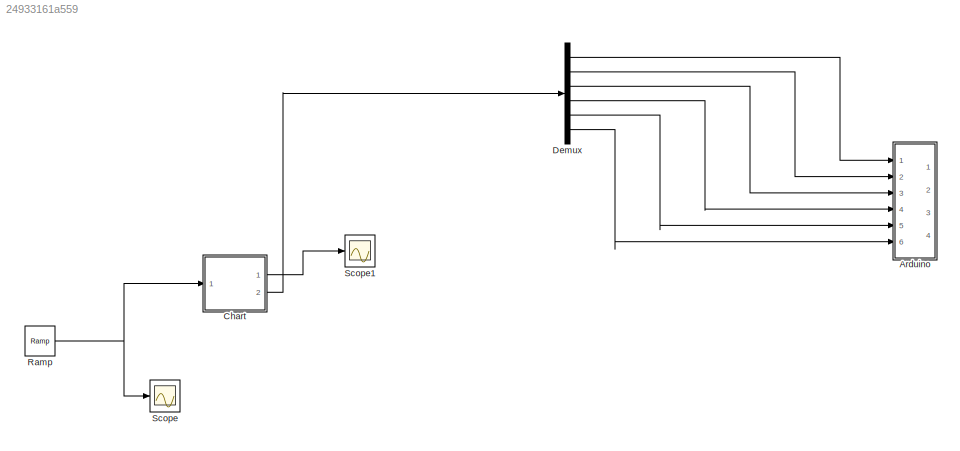
MODEL slx_24933161a559
KIND model
CONFIG AbsTol = auto
CONFIG EnableMultiTasking = on
CONFIG FixedStep = auto
CONFIG MaxStep = auto
CONFIG MinStep = auto
CONFIG RelTol = 1e-3
CONFIG SampleTimeConstraint = Unconstrained
CONFIG SolverName = FixedStepDiscrete
CONFIG StartTime = 0.0
CONFIG StopTime = 10
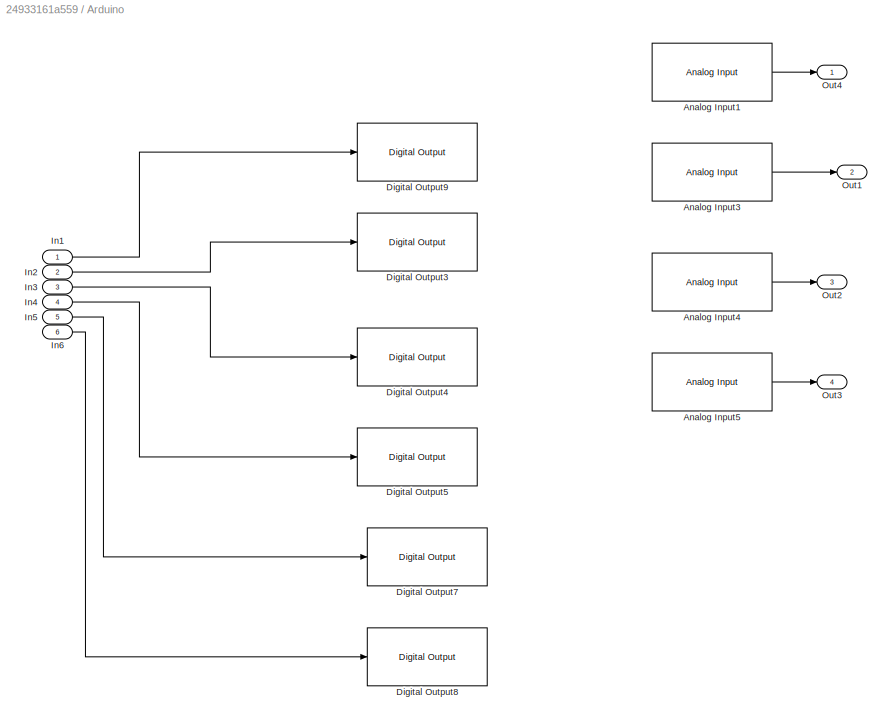
BLOCK [SubSystem] Arduino
  Commented = on
  Ports = [6, 4]
  RequestExecContextInheritance = off
BLOCK [Reference] Arduino/Analog Input1  REF=arduinolib/Analog Input
  Commented = on
  NameLocation = top
  Ports = [0, 1]
  SourceBlock = arduinolib/Analog Input
  SourceProductBaseCode = ARDUINO
  SourceType = Arduino Analog Input
BLOCK [Reference] Arduino/Analog Input3  REF=arduinolib/Analog Input
  Commented = on
  Ports = [0, 1]
  SourceBlock = arduinolib/Analog Input
  SourceProductBaseCode = ARDUINO
  SourceType = Arduino Analog Input
BLOCK [Reference] Arduino/Analog Input4  REF=arduinolib/Analog Input
  Commented = on
  Ports = [0, 1]
  SourceBlock = arduinolib/Analog Input
  SourceProductBaseCode = ARDUINO
  SourceType = Arduino Analog Input
BLOCK [Reference] Arduino/Analog Input5  REF=arduinolib/Analog Input
  Commented = on
  NameLocation = top
  Ports = [0, 1]
  SourceBlock = arduinolib/Analog Input
  SourceProductBaseCode = ARDUINO
  SourceType = Arduino Analog Input
BLOCK [Reference] Arduino/Digital Output3  REF=arduinolib/Digital Output
  Ports = [1]
  SourceBlock = arduinolib/Digital Output
  SourceProductBaseCode = ARDUINO
  SourceType = Arduino Digital Output
BLOCK [Reference] Arduino/Digital Output4  REF=arduinolib/Digital Output
  Ports = [1]
  SourceBlock = arduinolib/Digital Output
  SourceProductBaseCode = ARDUINO
  SourceType = Arduino Digital Output
BLOCK [Reference] Arduino/Digital Output5  REF=arduinolib/Digital Output
  Ports = [1]
  SourceBlock = arduinolib/Digital Output
  SourceProductBaseCode = ARDUINO
  SourceType = Arduino Digital Output
BLOCK [Reference] Arduino/Digital Output7  REF=arduinolib/Digital Output
  Ports = [1]
  SourceBlock = arduinolib/Digital Output
  SourceProductBaseCode = ARDUINO
  SourceType = Arduino Digital Output
BLOCK [Reference] Arduino/Digital Output8  REF=arduinolib/Digital Output
  Ports = [1]
  SourceBlock = arduinolib/Digital Output
  SourceProductBaseCode = ARDUINO
  SourceType = Arduino Digital Output
BLOCK [Reference] Arduino/Digital Output9  REF=arduinolib/Digital Output
  Ports = [1]
  SourceBlock = arduinolib/Digital Output
  SourceProductBaseCode = ARDUINO
  SourceType = Arduino Digital Output
BLOCK [Inport] Arduino/In1
BLOCK [Inport] Arduino/In2
  Port = 2
BLOCK [Inport] Arduino/In3
  Port = 3
BLOCK [Inport] Arduino/In4
  Port = 4
BLOCK [Inport] Arduino/In5
  Port = 5
BLOCK [Inport] Arduino/In6
  Port = 6
BLOCK [Outport] Arduino/Out1
  Port = 2
BLOCK [Outport] Arduino/Out2
  Port = 3
BLOCK [Outport] Arduino/Out3
  Port = 4
BLOCK [Outport] Arduino/Out4
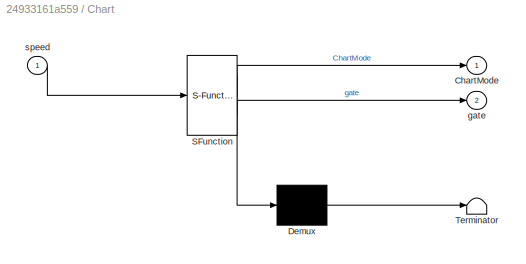
BLOCK [SubSystem] Chart
  ErrorFcn = Stateflow.Translate.translate
  PermitHierarchicalResolution = ExplicitOnly
  Ports = [1, 2]
  RequestExecContextInheritance = off
  SFBlockType = Chart
  TreatAsAtomicUnit = on
BLOCK [Demux] Chart/ Demux 
  Outputs = 1
  Ports = [1, 1]
BLOCK [S-Function] Chart/ SFunction 
  EnableBusSupport = on
  FunctionName = sf_sfun
  PortCounts = [1 3]
  Ports = [1, 3]
  SFcnIsStateOwnerBlock = off
  SFunctionDeploymentMode = off
  Tag = Stateflow S-Function 3
BLOCK [Terminator] Chart/ Terminator 
BLOCK [Outport] Chart/ChartMode
BLOCK [Outport] Chart/gate
  Port = 2
BLOCK [Inport] Chart/speed
BLOCK [Demux] Demux
  Outputs = 6
  Ports = [1, 6]
BLOCK [Reference] Ramp  REF=simulink/Sources/Ramp
  Ports = [0, 1]
  SourceBlock = simulink/Sources/Ramp
  SourceProductBaseCode = SL
  SourceType = Ramp
BLOCK [Scope] Scope
  Floating = off
  NumInputPorts = 1
  Ports = [1]
  ScopeSpecificationString = Simulink.scopes.TimeScopeBlockCfg('CurrentConfiguration', extmgr.ConfigurationSet(extmgr.Configuration('Core','General UI',true),extmgr.Configuration('Core','Source UI',true),extmgr.Configuration('Sources','WiredSimulink',true),extmgr.Configuration('Visuals','Time Domain',true,'SerializedDisplays',{struct('MinYLimReal','464.45125','MaxYLimReal','819.93875','YLabelReal','','MinYLimMag','464.45125',...<+1365ch>
BLOCK [Scope] Scope1
  Floating = off
  NumInputPorts = 1
  Ports = [1]
  ScopeSpecificationString = Simulink.scopes.TimeScopeBlockCfg('CurrentConfiguration', extmgr.ConfigurationSet(extmgr.Configuration('Core','General UI',true),extmgr.Configuration('Core','Source UI',true),extmgr.Configuration('Sources','WiredSimulink',true,'DataLoggingVariableName','ScopeData1'),extmgr.Configuration('Visuals','Time Domain',true,'SerializedDisplays',{struct('MinYLimReal','0.375','MaxYLimReal','6.625','YLabelRea...<+1383ch>
LINE Arduino/Analog Input1:1 -> Arduino/Out4:1
LINE Arduino/Analog Input3:1 -> Arduino/Out1:1
LINE Arduino/Analog Input4:1 -> Arduino/Out2:1
LINE Arduino/Analog Input5:1 -> Arduino/Out3:1
LINE Arduino/In1:1 -> Arduino/Digital Output9:1
LINE Arduino/In2:1 -> Arduino/Digital Output3:1
LINE Arduino/In3:1 -> Arduino/Digital Output4:1
LINE Arduino/In4:1 -> Arduino/Digital Output5:1
LINE Arduino/In5:1 -> Arduino/Digital Output7:1
LINE Arduino/In6:1 -> Arduino/Digital Output8:1
LINE Chart:1 -> Scope1:1
LINE Chart:2 -> Demux:1
LINE Demux:1 -> Arduino:1
LINE Demux:2 -> Arduino:2
LINE Demux:3 -> Arduino:3
LINE Demux:4 -> Arduino:4
LINE Demux:5 -> Arduino:5
LINE Demux:6 -> Arduino:6
NET Ramp:1 -> Chart:1, Scope:1
note: NET lines group one-source signal fan-out (src -> all destinations, sorted); 1:1 wires keep LINE
CHART Chart states=6 transitions=7
  STATE_LABEL 'State6\nentry:\ngate=[1 0 0 1 0 0]'
  STATE_LABEL 'State1\nentry:\ngate=[1 0 0 0 0 1]'
  STATE_LABEL 'State2\nentry:\ngate=[0 0 1 0 0 1]\n'
  STATE_LABEL 'State5\nentry:\ngate=[0 0 0 1 1 0]'
  STATE_LABEL 'State3\nentry:\ngate=[0 1 1 0 0 0]\n'
  STATE_LABEL 'State4\nentry:\ngate=[0 1 0 0 1 0]\n'
CHART  states=0 transitions=0
